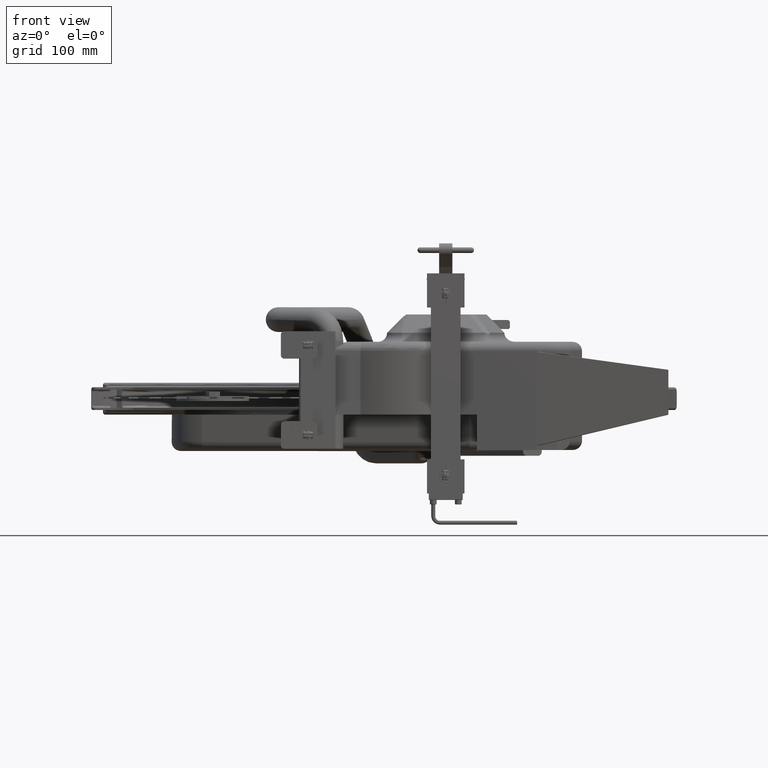
[diagram: clean part render]
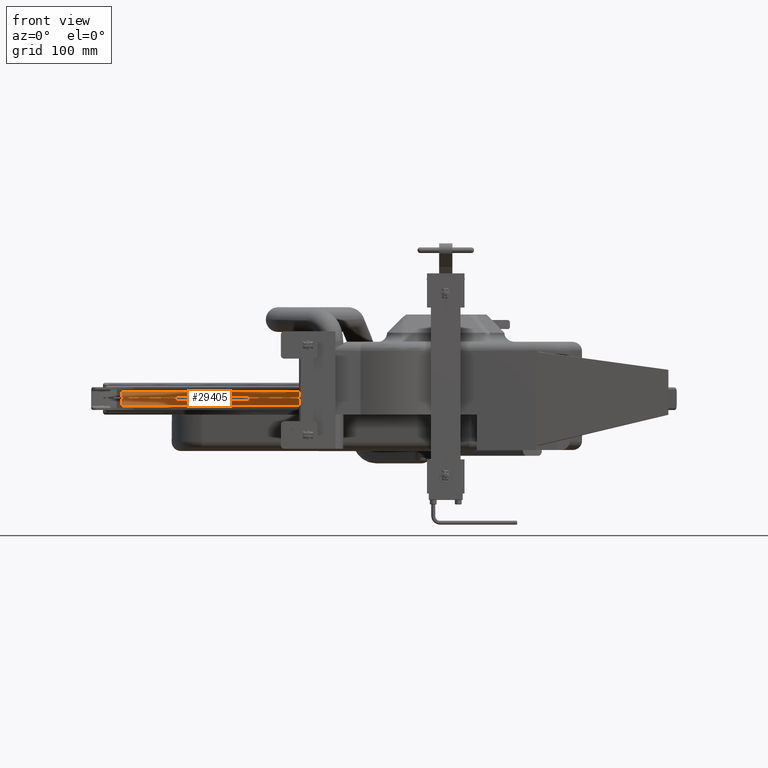
[diagram: same view with one face highlighted and labeled with its STEP entity id]
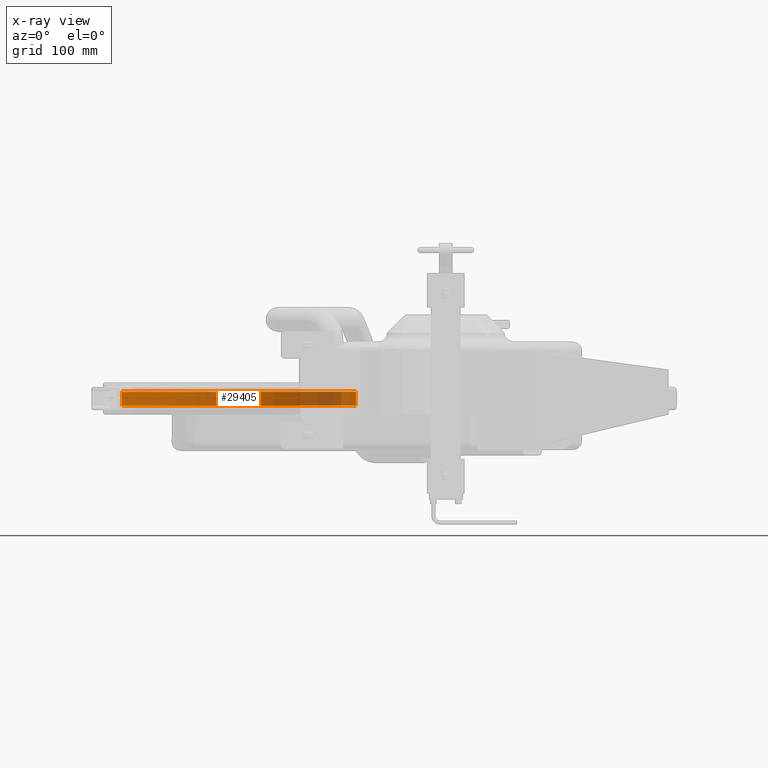
[diagram: x-ray of the same camera — body ghosted, the highlighted face saturated]
A machine part, front view. The second image highlights one B-rep face of the part: STEP entity #29405.
The next image is the same camera in x-ray: the body ghosted, the highlighted face saturated — about 42% of this face is hidden behind the body in this view.
In plain terms, the highlighted cylindrical surface (partial cylindrical patch) has radius 200.025 mm, axis along (-0, -0, -1).
Its self-contained STEP definition (entity closure, byte-faithful):
#228 = VECTOR ( 'NONE', #5551, 39.37007874015748100 ) ;
#2801 = EDGE_CURVE ( 'NONE', #44294, #10769, #54433, .T. ) ;
#3941 = CIRCLE ( 'NONE', #41420, 7.874999999999999100 ) ;
#5551 = DIRECTION ( 'NONE',  ( -0.0000000000000000000, -0.0000000000000000000, -1.000000000000000000 ) ) ;
#6488 = ORIENTED_EDGE ( 'NONE', *, *, #46252, .F. ) ;
#7512 = DIRECTION ( 'NONE',  ( 0.0000000000000000000, 0.0000000000000000000, 1.000000000000000000 ) ) ;
#10135 = EDGE_CURVE ( 'NONE', #10769, #43520, #3941, .T. ) ;
#10769 = VERTEX_POINT ( 'NONE', #83398 ) ;
#12618 = AXIS2_PLACEMENT_3D ( 'NONE', #38332, #65273, #86733 ) ;
#13293 = CARTESIAN_POINT ( 'NONE',  ( 0.0000000000000000000, 0.0000000000000000000, -0.3749999999999996700 ) ) ;
#15894 = EDGE_CURVE ( 'NONE', #82470, #62144, #37074, .T. ) ;
#19479 = CARTESIAN_POINT ( 'NONE',  ( 0.0000000000000000000, 0.0000000000000000000, 0.3749999999999996700 ) ) ;
#20278 = DIRECTION ( 'NONE',  ( -1.000000000000000000, 3.552713678800500900E-015, 0.0000000000000000000 ) ) ;
#22742 = DIRECTION ( 'NONE',  ( 0.0000000000000000000, 0.0000000000000000000, 1.000000000000000000 ) ) ;
#26556 = DIRECTION ( 'NONE',  ( -1.000000000000000000, 0.0000000000000000000, 0.0000000000000000000 ) ) ;
#26889 = VECTOR ( 'NONE', #7512, 39.37007874015748100 ) ;
#29405 = ADVANCED_FACE ( 'NONE', ( #61721 ), #78158, .F. ) ;
#32665 = ORIENTED_EDGE ( 'NONE', *, *, #10135, .F. ) ;
#36209 = AXIS2_PLACEMENT_3D ( 'NONE', #78351, #36406, #85408 ) ;
#36406 = DIRECTION ( 'NONE',  ( -0.0000000000000000000, -0.0000000000000000000, -1.000000000000000000 ) ) ;
#37074 = CIRCLE ( 'NONE', #75780, 7.874999999999999100 ) ;
#37433 = LINE ( 'NONE', #68538, #228 ) ;
#38332 = CARTESIAN_POINT ( 'NONE',  ( 0.0000000000000000000, 0.0000000000000000000, 0.6250000000000000000 ) ) ;
#41420 = AXIS2_PLACEMENT_3D ( 'NONE', #64667, #22742, #71735 ) ;
#42639 = EDGE_CURVE ( 'NONE', #68025, #44294, #37433, .T. ) ;
#42890 = ORIENTED_EDGE ( 'NONE', *, *, #42639, .F. ) ;
#43520 = VERTEX_POINT ( 'NONE', #47479 ) ;
#43817 = CARTESIAN_POINT ( 'NONE',  ( 7.875000000000000900, 0.0000000000000000000, 0.3749999999999996700 ) ) ;
#44294 = VERTEX_POINT ( 'NONE', #53703 ) ;
#46252 = EDGE_CURVE ( 'NONE', #62144, #68025, #69748, .T. ) ;
#47479 = CARTESIAN_POINT ( 'NONE',  ( -4.995371642078033900, 6.087847497886473400, -0.3749999999999996700 ) ) ;
#53354 = CARTESIAN_POINT ( 'NONE',  ( -4.995371642078033900, 6.087847497886473400, 0.3749999999999996700 ) ) ;
#53703 = CARTESIAN_POINT ( 'NONE',  ( 7.048138711446716400, -3.512743330248627900, -0.3749999999999996700 ) ) ;
#54433 = CIRCLE ( 'NONE', #64957, 7.874999999999999100 ) ;
#56429 = CARTESIAN_POINT ( 'NONE',  ( -4.995371642078033900, 6.087847497886473400, -0.3749999999999996700 ) ) ;
#56668 = EDGE_CURVE ( 'NONE', #43520, #82470, #66264, .T. ) ;
#60379 = CARTESIAN_POINT ( 'NONE',  ( 7.048138711446716400, -3.512743330248627900, 0.3749999999999996700 ) ) ;
#61721 = FACE_OUTER_BOUND ( 'NONE', #66736, .T. ) ;
#62144 = VERTEX_POINT ( 'NONE', #43817 ) ;
#62206 = DIRECTION ( 'NONE',  ( 0.0000000000000000000, 0.0000000000000000000, 1.000000000000000000 ) ) ;
#64667 = CARTESIAN_POINT ( 'NONE',  ( 0.0000000000000000000, 0.0000000000000000000, -0.3749999999999996700 ) ) ;
#64957 = AXIS2_PLACEMENT_3D ( 'NONE', #13293, #62206, #20278 ) ;
#65273 = DIRECTION ( 'NONE',  ( -0.0000000000000000000, -0.0000000000000000000, -1.000000000000000000 ) ) ;
#66029 = ORIENTED_EDGE ( 'NONE', *, *, #15894, .F. ) ;
#66264 = LINE ( 'NONE', #56429, #26889 ) ;
#66736 = EDGE_LOOP ( 'NONE', ( #75003, #42890, #6488, #66029, #87996, #32665 ) ) ;
#68025 = VERTEX_POINT ( 'NONE', #60379 ) ;
#68430 = DIRECTION ( 'NONE',  ( -0.0000000000000000000, -0.0000000000000000000, -1.000000000000000000 ) ) ;
#68538 = CARTESIAN_POINT ( 'NONE',  ( 7.048138711446716400, -3.512743330248627900, 0.3749999999999996700 ) ) ;
#69748 = CIRCLE ( 'NONE', #36209, 7.874999999999999100 ) ;
#71735 = DIRECTION ( 'NONE',  ( -1.000000000000000000, 0.0000000000000000000, 0.0000000000000000000 ) ) ;
#75003 = ORIENTED_EDGE ( 'NONE', *, *, #2801, .F. ) ;
#75780 = AXIS2_PLACEMENT_3D ( 'NONE', #19479, #68430, #26556 ) ;
#78158 = CYLINDRICAL_SURFACE ( 'NONE', #12618, 7.874999999999999100 ) ;
#78351 = CARTESIAN_POINT ( 'NONE',  ( 0.0000000000000000000, 0.0000000000000000000, 0.3749999999999996700 ) ) ;
#82470 = VERTEX_POINT ( 'NONE', #53354 ) ;
#83398 = CARTESIAN_POINT ( 'NONE',  ( 7.875000000000000900, 0.0000000000000000000, -0.3749999999999996700 ) ) ;
#85408 = DIRECTION ( 'NONE',  ( -1.000000000000000000, 0.0000000000000000000, 0.0000000000000000000 ) ) ;
#86733 = DIRECTION ( 'NONE',  ( -1.000000000000000000, 0.0000000000000000000, 0.0000000000000000000 ) ) ;
#87996 = ORIENTED_EDGE ( 'NONE', *, *, #56668, .F. ) ;